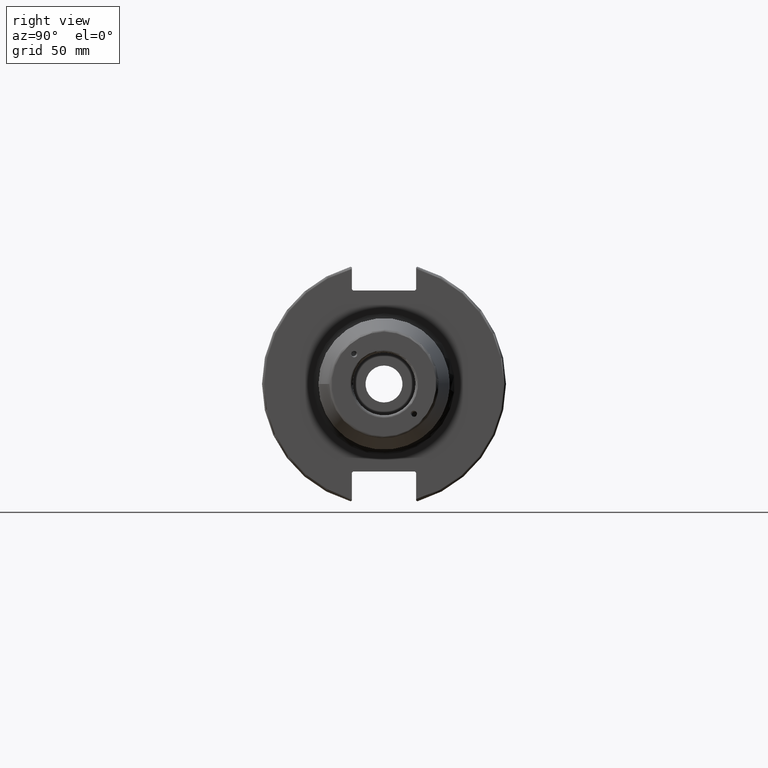
[diagram: clean part render]
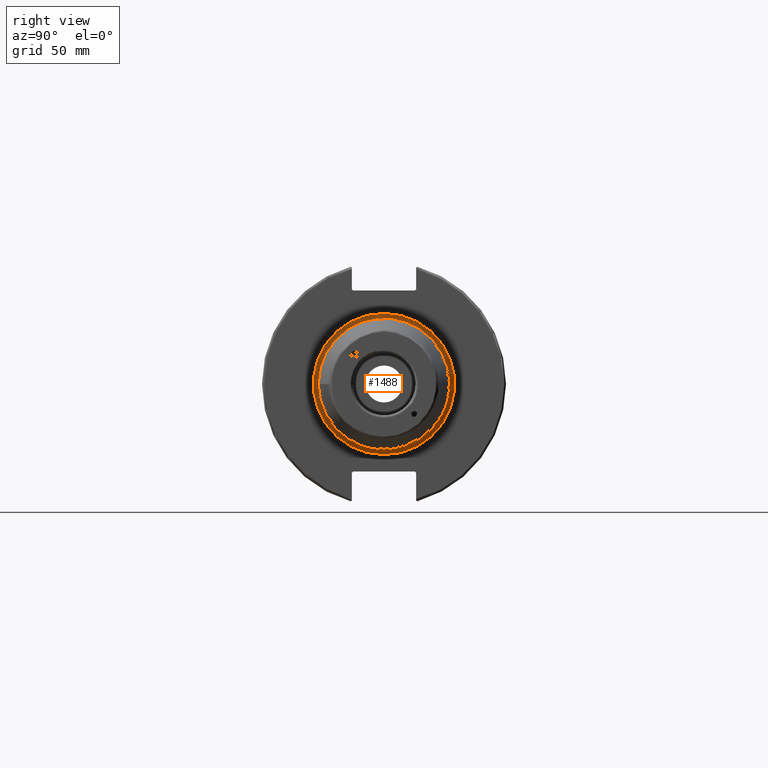
[diagram: same view with one face highlighted and labeled with its STEP entity id]
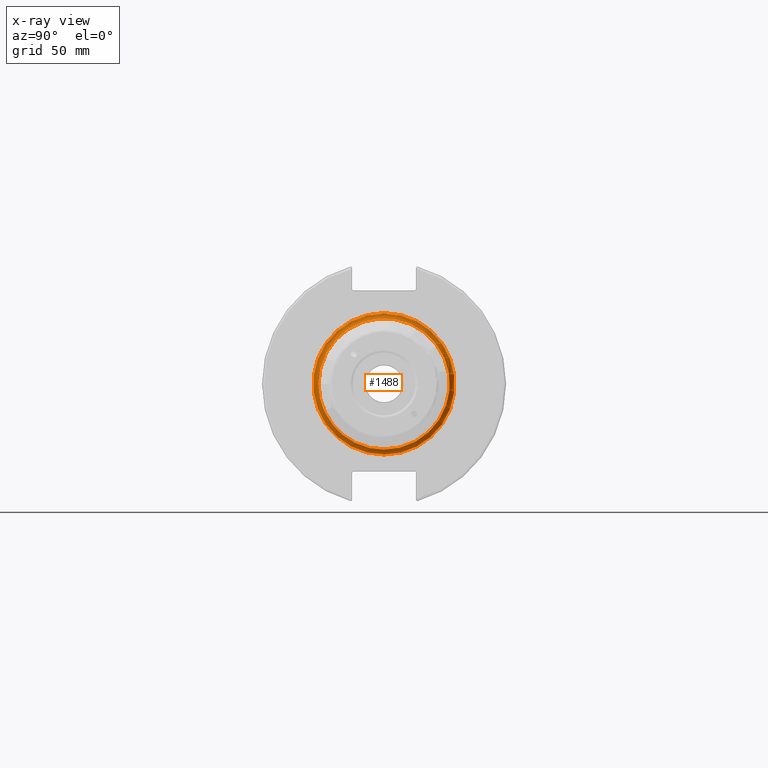
[diagram: x-ray of the same camera — body ghosted, the highlighted face saturated]
A machine part, right view. The second image highlights one B-rep face of the part: STEP entity #1488.
The next image is the same camera in x-ray: the body ghosted, the highlighted face saturated — about 3% of this face is hidden behind the body in this view.
In plain terms, the highlighted toroidal blend (fillet) surface has major radius 28.5 mm and minor (blend) radius 2 mm.
Its self-contained STEP definition (entity closure, byte-faithful):
#367=FACE_OUTER_BOUND('',#458,.T.);
#458=EDGE_LOOP('',(#1042,#1043,#1044,#1045,#1046));
#570=CIRCLE('',#1612,26.5);
#571=CIRCLE('',#1613,2.);
#572=CIRCLE('',#1614,28.5);
#573=CIRCLE('',#1615,26.5);
#646=VERTEX_POINT('',#2225);
#647=VERTEX_POINT('',#2226);
#648=VERTEX_POINT('',#2228);
#804=EDGE_CURVE('',#646,#647,#570,.T.);
#805=EDGE_CURVE('',#647,#648,#571,.T.);
#806=EDGE_CURVE('',#648,#648,#572,.T.);
#807=EDGE_CURVE('',#647,#646,#573,.T.);
#1042=ORIENTED_EDGE('',*,*,#804,.T.);
#1043=ORIENTED_EDGE('',*,*,#805,.T.);
#1044=ORIENTED_EDGE('',*,*,#806,.T.);
#1045=ORIENTED_EDGE('',*,*,#805,.F.);
#1046=ORIENTED_EDGE('',*,*,#807,.T.);
#1476=TOROIDAL_SURFACE('',#1611,28.5,2.);
#1488=ADVANCED_FACE('',(#367),#1476,.F.);
#1611=AXIS2_PLACEMENT_3D('',#2224,#1800,#1801);
#1612=AXIS2_PLACEMENT_3D('',#2227,#1802,#1803);
#1613=AXIS2_PLACEMENT_3D('',#2229,#1804,#1805);
#1614=AXIS2_PLACEMENT_3D('',#2230,#1806,#1807);
#1615=AXIS2_PLACEMENT_3D('',#2231,#1808,#1809);
#1800=DIRECTION('center_axis',(-1.,0.,0.));
#1801=DIRECTION('ref_axis',(0.,0.,1.));
#1802=DIRECTION('center_axis',(-1.,0.,0.));
#1803=DIRECTION('ref_axis',(0.,-1.,-1.22464679914735E-16));
#1804=DIRECTION('center_axis',(0.,-1.,1.22464679914735E-16));
#1805=DIRECTION('ref_axis',(0.,-1.22464679914735E-16,-1.));
#1806=DIRECTION('center_axis',(1.,0.,0.));
#1807=DIRECTION('ref_axis',(0.,-1.,-1.22464679914735E-16));
#1808=DIRECTION('center_axis',(-1.,0.,0.));
#1809=DIRECTION('ref_axis',(0.,-1.,-1.22464679914735E-16));
#2224=CARTESIAN_POINT('Origin',(21.05,0.,0.));
#2225=CARTESIAN_POINT('',(21.05,-26.5,-3.24531401774049E-15));
#2226=CARTESIAN_POINT('',(21.05,-3.24531401774049E-15,-26.5));
#2227=CARTESIAN_POINT('Origin',(21.05,0.,0.));
#2228=CARTESIAN_POINT('',(19.05,-3.49024337756996E-15,-28.5));
#2229=CARTESIAN_POINT('Origin',(21.05,-3.49024337756996E-15,-28.5));
#2230=CARTESIAN_POINT('Origin',(19.05,0.,0.));
#2231=CARTESIAN_POINT('Origin',(21.05,0.,0.));